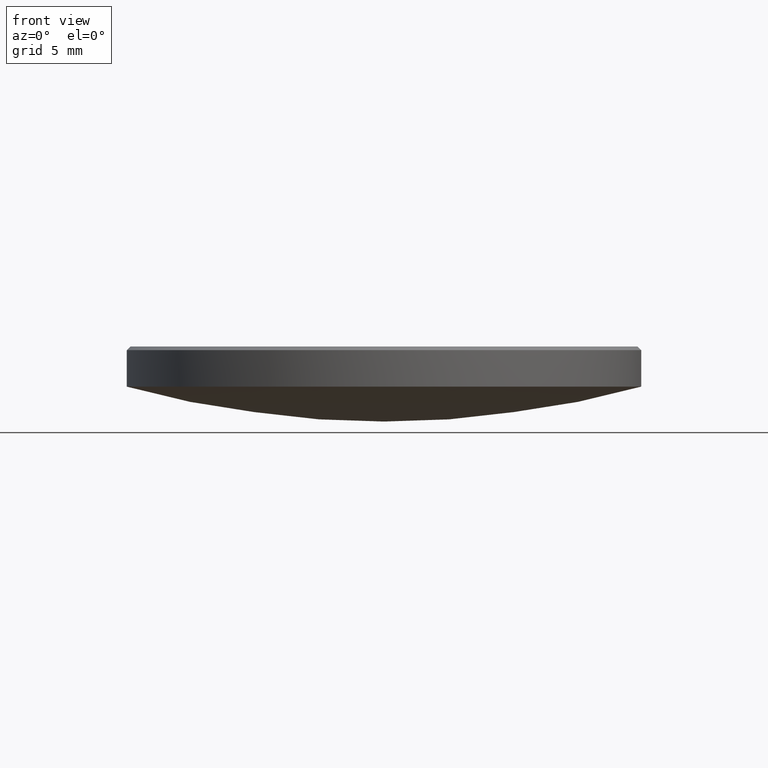
[diagram: clean part render]
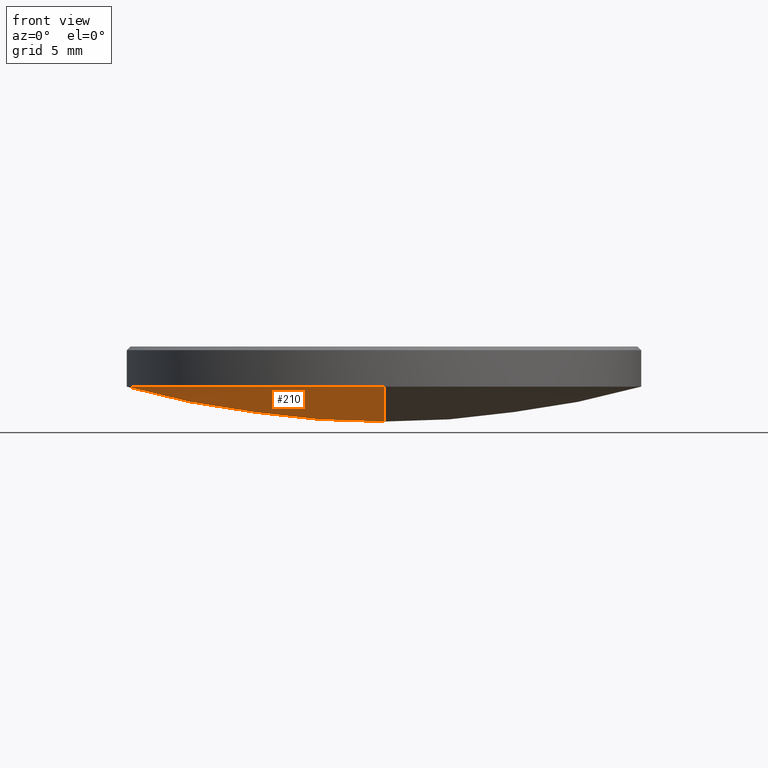
[diagram: same view with one face highlighted and labeled with its STEP entity id]
A machine part, front view. The second image highlights one B-rep face of the part: STEP entity #210.
In plain terms, the highlighted spherical surface has radius 47.64 mm.
Its self-contained STEP definition (entity closure, byte-faithful):
#8 = EDGE_CURVE ( 'NONE', #170, #14, #28, .T. ) ;
#9 = DIRECTION ( 'NONE',  ( 0.000000000000000000, 1.000000000000000000, 0.000000000000000000 ) ) ;
#14 = VERTEX_POINT ( 'NONE', #148 ) ;
#17 = VERTEX_POINT ( 'NONE', #37 ) ;
#20 = CARTESIAN_POINT ( 'NONE',  ( 0.000000000000000000, 0.000000000000000000, 49.91600592386058111 ) ) ;
#28 = CIRCLE ( 'NONE', #55, 12.69999999999999929 ) ;
#30 = SPHERICAL_SURFACE ( 'NONE', #163, 47.64000000000000057 ) ;
#33 = AXIS2_PLACEMENT_3D ( 'NONE', #137, #192, #194 ) ;
#35 = EDGE_CURVE ( 'NONE', #17, #204, #232, .T. ) ;
#37 = CARTESIAN_POINT ( 'NONE',  ( 0.000000000000000000, 2.917108675568995142E-15, 2.276005923860582758 ) ) ;
#55 = AXIS2_PLACEMENT_3D ( 'NONE', #89, #135, #83 ) ;
#67 = CARTESIAN_POINT ( 'NONE',  ( -1.555301434917138827E-15, -12.70000000000000284, 4.000000000000001776 ) ) ;
#68 = CIRCLE ( 'NONE', #33, 47.64000000000000057 ) ;
#69 = CARTESIAN_POINT ( 'NONE',  ( 0.000000000000000000, 12.70000000000000284, 4.000000000000001776 ) ) ;
#83 = DIRECTION ( 'NONE',  ( 1.000000000000000000, 0.000000000000000000, 0.000000000000000000 ) ) ;
#89 = CARTESIAN_POINT ( 'NONE',  ( 0.000000000000000000, 0.000000000000000000, 4.000000000000000000 ) ) ;
#93 = FACE_OUTER_BOUND ( 'NONE', #189, .T. ) ;
#101 = ORIENTED_EDGE ( 'NONE', *, *, #35, .T. ) ;
#125 = ORIENTED_EDGE ( 'NONE', *, *, #147, .F. ) ;
#126 = DIRECTION ( 'NONE',  ( -1.000000000000000000, 1.224646799147353207E-16, 0.000000000000000000 ) ) ;
#134 = CIRCLE ( 'NONE', #273, 12.69999999999999929 ) ;
#135 = DIRECTION ( 'NONE',  ( -0.000000000000000000, -0.000000000000000000, 1.000000000000000000 ) ) ;
#137 = CARTESIAN_POINT ( 'NONE',  ( 0.000000000000000000, 0.000000000000000000, 49.91600592386058111 ) ) ;
#147 = EDGE_CURVE ( 'NONE', #14, #204, #134, .T. ) ;
#148 = CARTESIAN_POINT ( 'NONE',  ( -12.69999999999999929, 0.000000000000000000, 4.000000000000000000 ) ) ;
#149 = ORIENTED_EDGE ( 'NONE', *, *, #8, .F. ) ;
#156 = CARTESIAN_POINT ( 'NONE',  ( 0.000000000000000000, 0.000000000000000000, 4.000000000000000000 ) ) ;
#163 = AXIS2_PLACEMENT_3D ( 'NONE', #245, #201, #9 ) ;
#170 = VERTEX_POINT ( 'NONE', #69 ) ;
#182 = DIRECTION ( 'NONE',  ( 1.000000000000000000, 0.000000000000000000, 0.000000000000000000 ) ) ;
#187 = ORIENTED_EDGE ( 'NONE', *, *, #275, .F. ) ;
#189 = EDGE_LOOP ( 'NONE', ( #187, #101, #125, #149 ) ) ;
#192 = DIRECTION ( 'NONE',  ( 1.000000000000000000, -0.000000000000000000, 0.000000000000000000 ) ) ;
#194 = DIRECTION ( 'NONE',  ( 0.000000000000000000, 0.000000000000000000, -1.000000000000000000 ) ) ;
#201 = DIRECTION ( 'NONE',  ( -1.000000000000000000, 0.000000000000000000, 0.000000000000000000 ) ) ;
#204 = VERTEX_POINT ( 'NONE', #67 ) ;
#208 = DIRECTION ( 'NONE',  ( -1.224646799147353207E-16, -1.000000000000000000, 0.000000000000000000 ) ) ;
#210 = ADVANCED_FACE ( 'NONE', ( #93 ), #30, .T. ) ;
#219 = AXIS2_PLACEMENT_3D ( 'NONE', #20, #126, #208 ) ;
#232 = CIRCLE ( 'NONE', #219, 47.64000000000000057 ) ;
#245 = CARTESIAN_POINT ( 'NONE',  ( 0.000000000000000000, 0.000000000000000000, 49.91600592386058111 ) ) ;
#248 = DIRECTION ( 'NONE',  ( -0.000000000000000000, -0.000000000000000000, 1.000000000000000000 ) ) ;
#273 = AXIS2_PLACEMENT_3D ( 'NONE', #156, #248, #182 ) ;
#275 = EDGE_CURVE ( 'NONE', #17, #170, #68, .T. ) ;